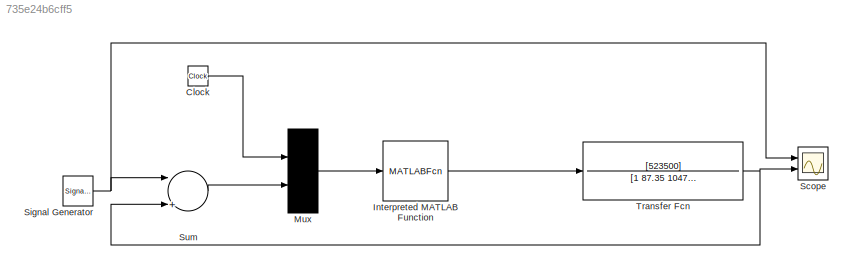
MODEL slx_735e24b6cff5
KIND model
CONFIG AbsTol = auto
CONFIG FixedStep = 0.001
CONFIG MaxStep = auto
CONFIG MinStep = auto
CONFIG RelTol = 1e-3
CONFIG SampleTimeConstraint = Unconstrained
CONFIG Solver = ode45
CONFIG SolverMode = Auto
CONFIG SolverName = ode45
CONFIG StartTime = 0.0
CONFIG StopTime = 1.0
BLOCK [Clock] Clock
  DisplayTime = on
BLOCK [MATLABFcn] Interpreted MATLAB Function
  MATLABFcn = chap1_7f(u)
  Ports = [1, 1]
BLOCK [Mux] Mux
  Inputs = 2
  Ports = [2, 1]
BLOCK [Scope] Scope
  NumInputPorts = 2
  Ports = [2]
  ScopeSpecificationString = Simulink.scopes.TimeScopeBlockCfg('CurrentConfiguration', extmgr.ConfigurationSet(extmgr.Configuration('Core','General UI',true),extmgr.Configuration('Core','Source UI',true),extmgr.Configuration('Sources','WiredSimulink',true),extmgr.Configuration('Visuals','Time Domain',true,'SerializedDisplays',{struct('MinYLimReal','-0.0625','MaxYLimReal','0.0625','YLabelReal','','MinYLimMag','0.00000','MaxYLi...<+2147ch>
BLOCK [SignalGenerator] Signal Generator
  Amplitude = 0.05
  Ports = [0, 1]
BLOCK [Sum] Sum
  InputSameDT = off
  Inputs = |+-
  OutDataTypeStr = Inherit: Inherit via internal rule
  Ports = [2, 1]
  SaturateOnIntegerOverflow = off
BLOCK [TransferFcn] Transfer Fcn
  Denominator = [1 87.35 10470 0]
  Numerator = [523500]
LINE Clock:1 -> Mux:1
LINE Interpreted MATLAB Function:1 -> Transfer Fcn:1
LINE Mux:1 -> Interpreted MATLAB Function:1
NET Signal Generator:1 -> Scope:1, Sum:1
LINE Sum:1 -> Mux:2
NET Transfer Fcn:1 -> Scope:2, Sum:2
note: NET lines group one-source signal fan-out (src -> all destinations, sorted); 1:1 wires keep LINE
